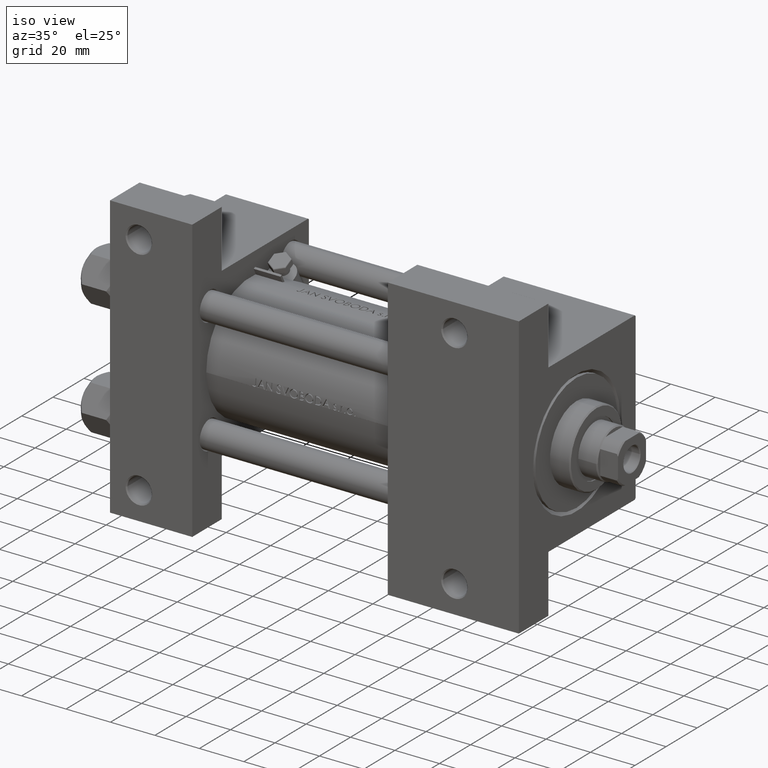
[diagram: clean part render]
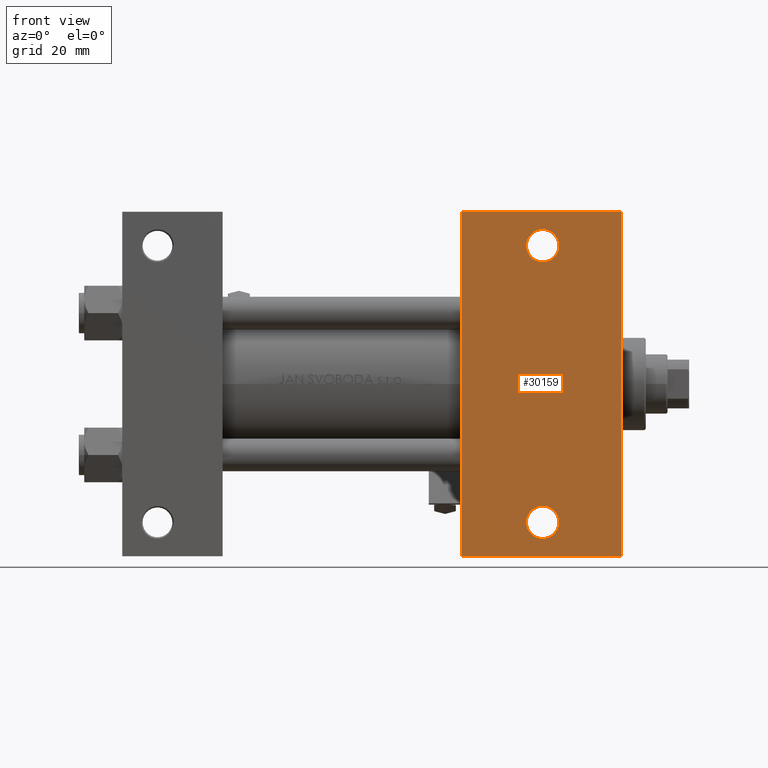
[diagram: tour spotlight — one face highlighted and labeled with its STEP entity id]
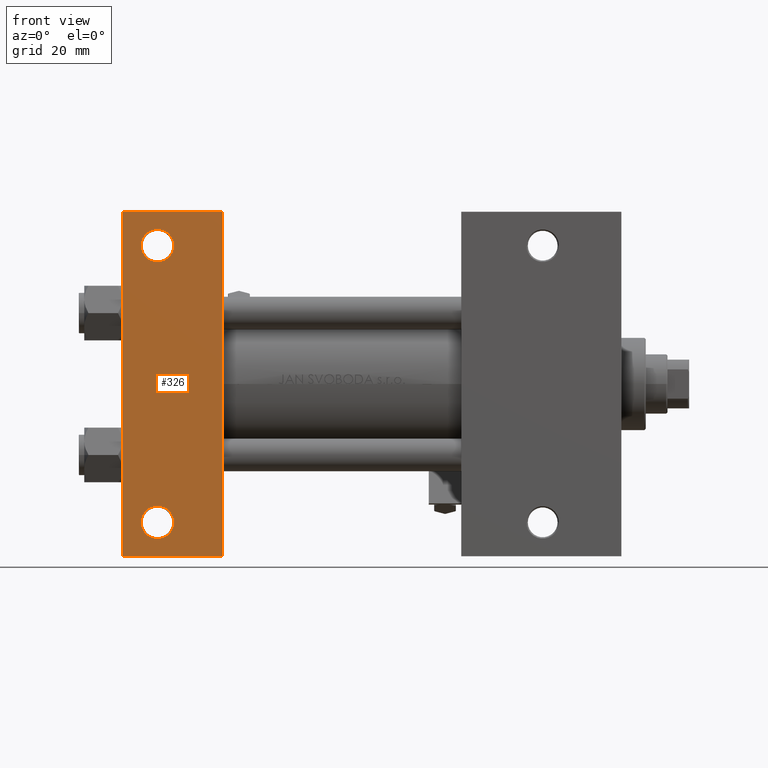
[diagram: tour spotlight — one face highlighted and labeled with its STEP entity id]
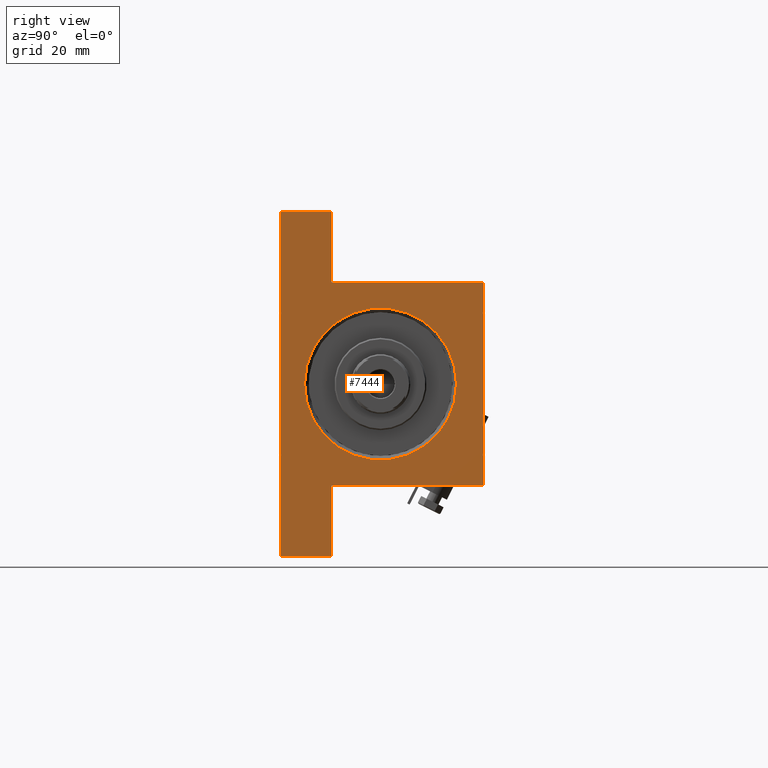
[diagram: tour spotlight — one face highlighted and labeled with its STEP entity id]
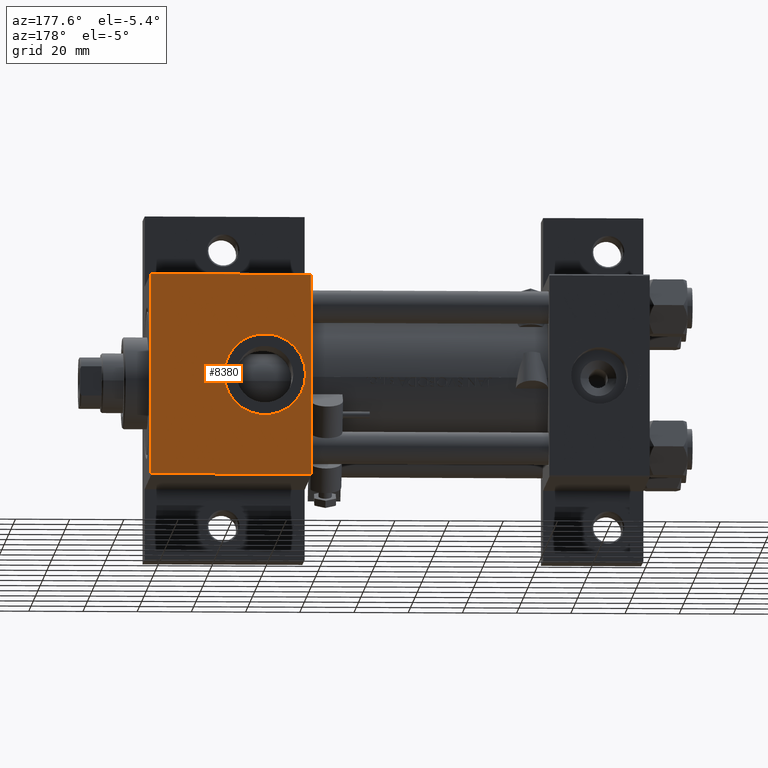
[diagram: tour spotlight — one face highlighted and labeled with its STEP entity id]
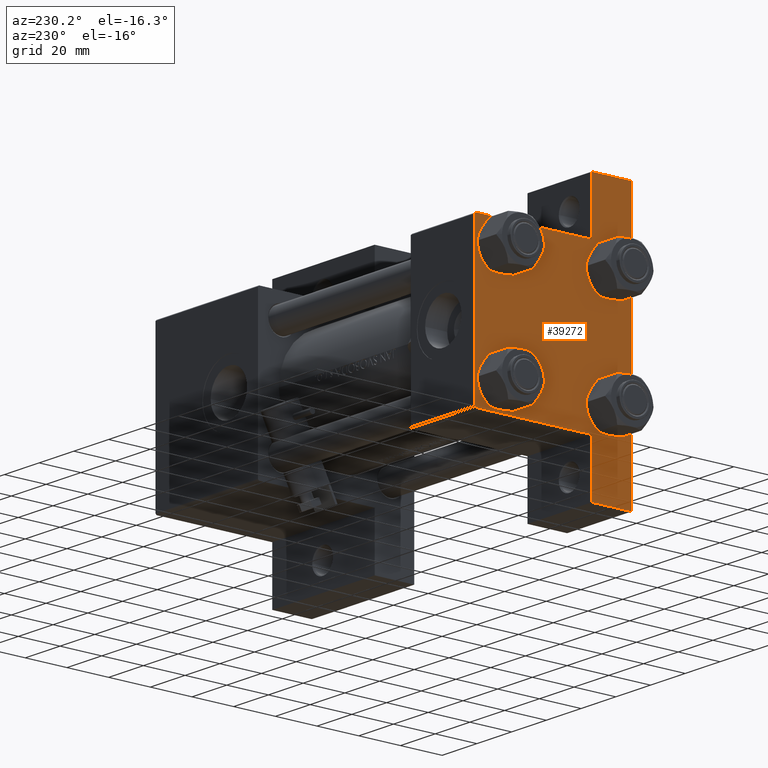
[diagram: tour spotlight — one face highlighted and labeled with its STEP entity id]
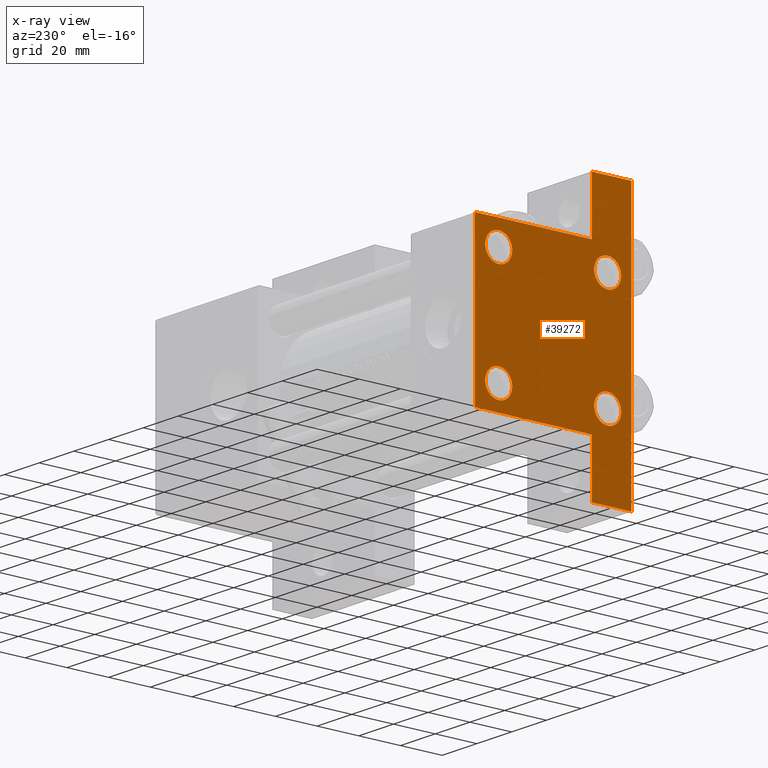
[diagram: x-ray of the same camera — body ghosted, this tour face saturated]
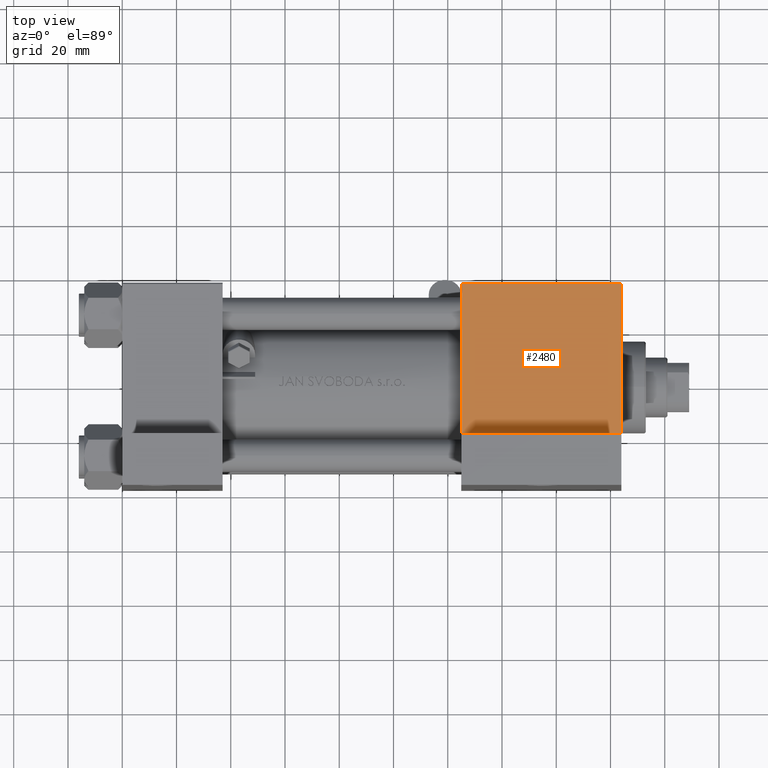
[diagram: tour spotlight — one face highlighted and labeled with its STEP entity id]
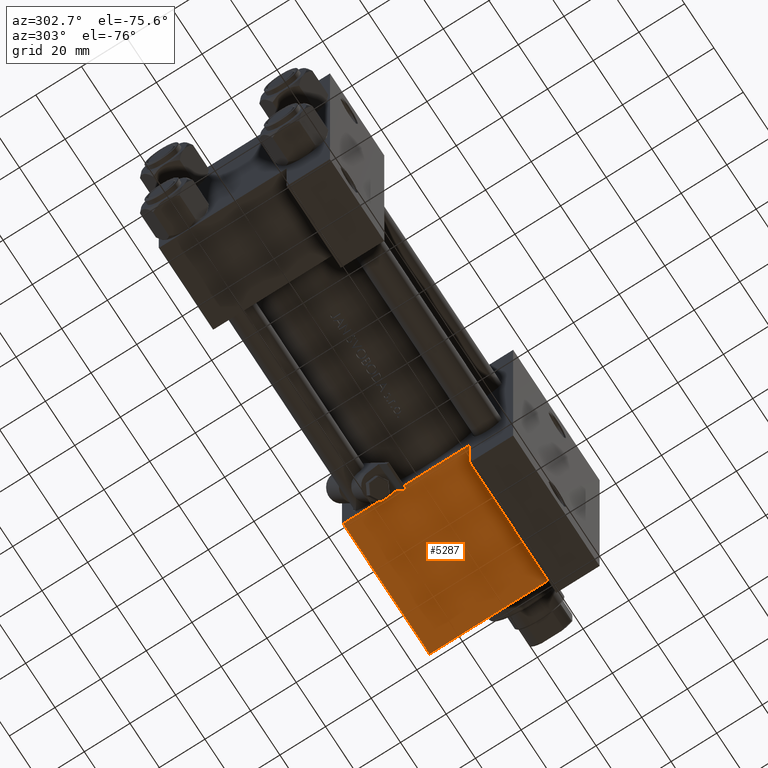
[diagram: tour spotlight — one face highlighted and labeled with its STEP entity id]
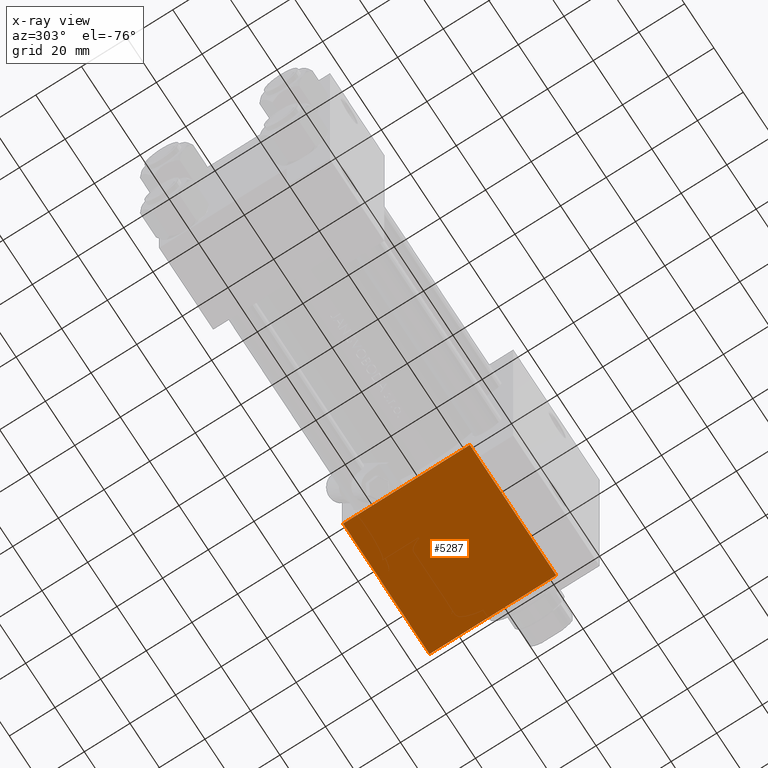
[diagram: x-ray of the same camera — body ghosted, this tour face saturated]
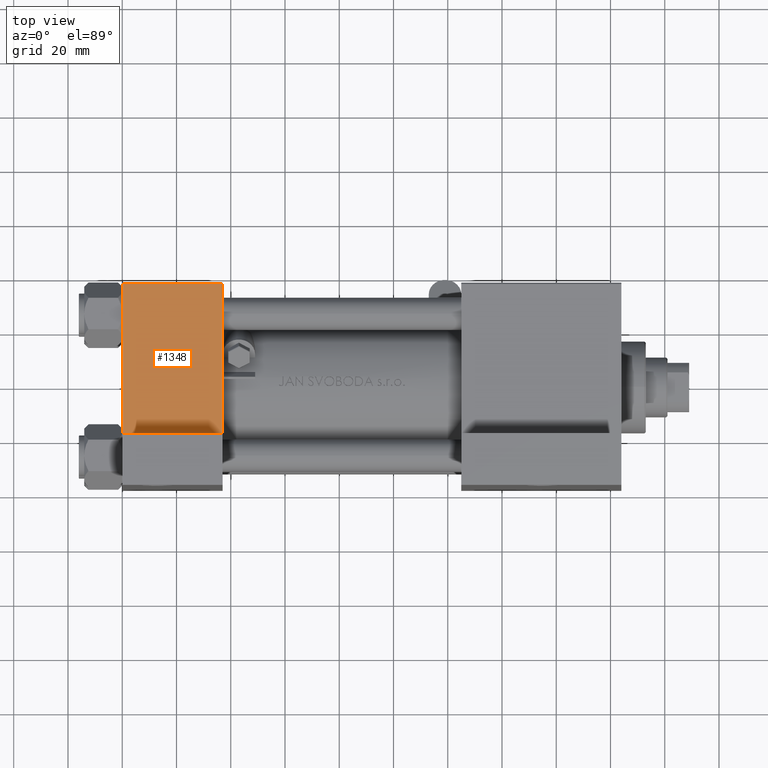
[diagram: tour spotlight — one face highlighted and labeled with its STEP entity id]
A machine part: a face-by-face anatomy tour. The part has 1152 B-rep faces; the first image is the clean iso view, then the 8 largest visible faces are spotlighted one at a time (largest first), each with its STEP entity span.

Face 1 — front view, entity #30159. In plain terms, the highlighted planar face has unit normal (0, -1, 0).
Definition (entity closure, byte-faithful):
#37 = PLANE ( 'NONE',  #19064 ) ;
#1067 = VERTEX_POINT ( 'NONE', #8407 ) ;
#1082 = AXIS2_PLACEMENT_3D ( 'NONE', #48311, #44402, #33092 ) ;
#1099 = ORIENTED_EDGE ( 'NONE', *, *, #39610, .T. ) ;
#1125 = EDGE_LOOP ( 'NONE', ( #3092, #1099 ) ) ;
#1801 = LINE ( 'NONE', #43612, #36463 ) ;
#3092 = ORIENTED_EDGE ( 'NONE', *, *, #25822, .T. ) ;
#3544 = ORIENTED_EDGE ( 'NONE', *, *, #36781, .T. ) ;
#5256 = DIRECTION ( 'NONE',  ( -1.000000000000000000, 0.000000000000000000, 0.000000000000000000 ) ) ;
#5664 = CIRCLE ( 'NONE', #14342, 5.999499999999990507 ) ;
#6230 = CARTESIAN_POINT ( 'NONE',  ( 124.9999999999999858, -63.50000000000000000, -37.50000000000000000 ) ) ;
#6241 = CARTESIAN_POINT ( 'NONE',  ( 149.0005000000000450, -50.99999999999999289, -37.50000000000000000 ) ) ;
#7638 = CARTESIAN_POINT ( 'NONE',  ( 184.0000000000000000, 37.50000000000000000, -37.50000000000000000 ) ) ;
#7867 = FACE_BOUND ( 'NONE', #1125, .T. ) ;
#8407 = CARTESIAN_POINT ( 'NONE',  ( 160.9995000000000118, -50.99999999999999289, -37.50000000000000000 ) ) ;
#8564 = CARTESIAN_POINT ( 'NONE',  ( 155.0000000000000284, 50.99999999999999289, -37.50000000000000000 ) ) ;
#12038 = FACE_BOUND ( 'NONE', #21282, .T. ) ;
#12643 = CIRCLE ( 'NONE', #40156, 5.999499999999990507 ) ;
#12772 = LINE ( 'NONE', #43290, #39512 ) ;
#12807 = EDGE_CURVE ( 'NONE', #43226, #1067, #16752, .T. ) ;
#13576 = DIRECTION ( 'NONE',  ( 0.000000000000000000, -1.000000000000000000, 0.000000000000000000 ) ) ;
#14342 = AXIS2_PLACEMENT_3D ( 'NONE', #22570, #30436, #18867 ) ;
#14648 = LINE ( 'NONE', #37290, #40687 ) ;
#15004 = VERTEX_POINT ( 'NONE', #21352 ) ;
#15187 = CARTESIAN_POINT ( 'NONE',  ( 125.0000000000000000, 63.50000000000000000, -37.50000000000000000 ) ) ;
#16752 = CIRCLE ( 'NONE', #1082, 5.999499999999990507 ) ;
#17794 = ORIENTED_EDGE ( 'NONE', *, *, #12807, .T. ) ;
#18867 = DIRECTION ( 'NONE',  ( -1.000000000000000000, 0.000000000000000000, 0.000000000000000000 ) ) ;
#19064 = AXIS2_PLACEMENT_3D ( 'NONE', #7638, #38615, #45507 ) ;
#20293 = ORIENTED_EDGE ( 'NONE', *, *, #23086, .T. ) ;
#20347 = VERTEX_POINT ( 'NONE', #28968 ) ;
#21282 = EDGE_LOOP ( 'NONE', ( #17794, #28941 ) ) ;
#21352 = CARTESIAN_POINT ( 'NONE',  ( 184.0000000000000284, 63.50000000000000000, -37.50000000000000000 ) ) ;
#21912 = VERTEX_POINT ( 'NONE', #33304 ) ;
#22279 = DIRECTION ( 'NONE',  ( 0.000000000000000000, -1.000000000000000000, 0.000000000000000000 ) ) ;
#22570 = CARTESIAN_POINT ( 'NONE',  ( 155.0000000000000284, -50.99999999999999289, -37.50000000000000000 ) ) ;
#23086 = EDGE_CURVE ( 'NONE', #21912, #46676, #32944, .T. ) ;
#23510 = VERTEX_POINT ( 'NONE', #37005 ) ;
#23822 = DIRECTION ( 'NONE',  ( -0.000000000000000000, -0.000000000000000000, 1.000000000000000000 ) ) ;
#23952 = DIRECTION ( 'NONE',  ( -0.000000000000000000, -0.000000000000000000, 1.000000000000000000 ) ) ;
#25074 = CARTESIAN_POINT ( 'NONE',  ( 124.9999999999999858, -63.50000000000000000, -37.50000000000000000 ) ) ;
#25822 = EDGE_CURVE ( 'NONE', #23510, #20347, #12643, .T. ) ;
#28941 = ORIENTED_EDGE ( 'NONE', *, *, #29601, .T. ) ;
#28968 = CARTESIAN_POINT ( 'NONE',  ( 160.9995000000000118, 50.99999999999999289, -37.50000000000000000 ) ) ;
#29601 = EDGE_CURVE ( 'NONE', #1067, #43226, #5664, .T. ) ;
#30159 = ADVANCED_FACE ( 'NONE', ( #7867, #12038, #41352 ), #37, .T. ) ;
#30436 = DIRECTION ( 'NONE',  ( -0.000000000000000000, -0.000000000000000000, 1.000000000000000000 ) ) ;
#31085 = CARTESIAN_POINT ( 'NONE',  ( 155.0000000000000284, 50.99999999999999289, -37.50000000000000000 ) ) ;
#31212 = EDGE_CURVE ( 'NONE', #43045, #15004, #12772, .T. ) ;
#32944 = LINE ( 'NONE', #25074, #39271 ) ;
#33092 = DIRECTION ( 'NONE',  ( -1.000000000000000000, 0.000000000000000000, 0.000000000000000000 ) ) ;
#33189 = DIRECTION ( 'NONE',  ( -1.000000000000000000, 4.704334850106594808E-16, -0.000000000000000000 ) ) ;
#33304 = CARTESIAN_POINT ( 'NONE',  ( 184.0000000000000000, -63.50000000000002842, -37.50000000000000000 ) ) ;
#33406 = CIRCLE ( 'NONE', #38921, 5.999499999999990507 ) ;
#33706 = EDGE_LOOP ( 'NONE', ( #43598, #38136, #3544, #20293 ) ) ;
#36463 = VECTOR ( 'NONE', #13576, 1000.000000000000000 ) ;
#36781 = EDGE_CURVE ( 'NONE', #15004, #21912, #1801, .T. ) ;
#37005 = CARTESIAN_POINT ( 'NONE',  ( 149.0005000000000450, 50.99999999999999289, -37.50000000000000000 ) ) ;
#37290 = CARTESIAN_POINT ( 'NONE',  ( 125.0000000000000000, 37.50000000000000000, -37.50000000000000000 ) ) ;
#38136 = ORIENTED_EDGE ( 'NONE', *, *, #31212, .T. ) ;
#38585 = DIRECTION ( 'NONE',  ( -1.000000000000000000, 0.000000000000000000, 0.000000000000000000 ) ) ;
#38615 = DIRECTION ( 'NONE',  ( 0.000000000000000000, 0.000000000000000000, -1.000000000000000000 ) ) ;
#38921 = AXIS2_PLACEMENT_3D ( 'NONE', #8564, #23822, #38585 ) ;
#39271 = VECTOR ( 'NONE', #33189, 1000.000000000000000 ) ;
#39512 = VECTOR ( 'NONE', #46963, 1000.000000000000000 ) ;
#39610 = EDGE_CURVE ( 'NONE', #20347, #23510, #33406, .T. ) ;
#40156 = AXIS2_PLACEMENT_3D ( 'NONE', #31085, #23952, #5256 ) ;
#40687 = VECTOR ( 'NONE', #22279, 1000.000000000000000 ) ;
#41352 = FACE_OUTER_BOUND ( 'NONE', #33706, .T. ) ;
#43045 = VERTEX_POINT ( 'NONE', #15187 ) ;
#43226 = VERTEX_POINT ( 'NONE', #6241 ) ;
#43290 = CARTESIAN_POINT ( 'NONE',  ( 125.0000000000000000, 63.50000000000000000, -37.50000000000000000 ) ) ;
#43598 = ORIENTED_EDGE ( 'NONE', *, *, #45096, .F. ) ;
#43612 = CARTESIAN_POINT ( 'NONE',  ( 184.0000000000000000, 37.50000000000000000, -37.50000000000000000 ) ) ;
#44402 = DIRECTION ( 'NONE',  ( -0.000000000000000000, -0.000000000000000000, 1.000000000000000000 ) ) ;
#45096 = EDGE_CURVE ( 'NONE', #43045, #46676, #14648, .T. ) ;
#45507 = DIRECTION ( 'NONE',  ( -1.000000000000000000, 0.000000000000000000, -0.000000000000000000 ) ) ;
#46676 = VERTEX_POINT ( 'NONE', #6230 ) ;
#46963 = DIRECTION ( 'NONE',  ( 1.000000000000000000, 0.000000000000000000, 0.000000000000000000 ) ) ;
#48311 = CARTESIAN_POINT ( 'NONE',  ( 155.0000000000000284, -50.99999999999999289, -37.50000000000000000 ) ) ;

Face 2 — front view, entity #326. In plain terms, the highlighted planar face has unit normal (0, -1, -0).
Definition (entity closure, byte-faithful):
#326 = ADVANCED_FACE ( 'NONE', ( #34976, #41865, #15778 ), #38415, .T. ) ;
#627 = EDGE_CURVE ( 'NONE', #39234, #14632, #15895, .T. ) ;
#1259 = CIRCLE ( 'NONE', #5175, 5.999499999999962974 ) ;
#2179 = DIRECTION ( 'NONE',  ( -0.000000000000000000, -9.251858538542972814E-17, 1.000000000000000000 ) ) ;
#2449 = DIRECTION ( 'NONE',  ( 0.000000000000000000, 1.000000000000000000, 0.000000000000000000 ) ) ;
#2968 = EDGE_CURVE ( 'NONE', #36871, #10669, #10301, .T. ) ;
#3477 = EDGE_LOOP ( 'NONE', ( #37053, #20742, #26436, #33170 ) ) ;
#4027 = AXIS2_PLACEMENT_3D ( 'NONE', #44078, #9628, #6191 ) ;
#4556 = EDGE_LOOP ( 'NONE', ( #47822, #24177 ) ) ;
#5175 = AXIS2_PLACEMENT_3D ( 'NONE', #47650, #2179, #17159 ) ;
#6191 = DIRECTION ( 'NONE',  ( 0.000000000000000000, 1.000000000000000000, 0.000000000000000000 ) ) ;
#7361 = CARTESIAN_POINT ( 'NONE',  ( 12.99999999999999822, 50.99999999999997868, -37.50000000000000000 ) ) ;
#8398 = DIRECTION ( 'NONE',  ( 0.000000000000000000, 1.000000000000000000, 9.251858538542972814E-17 ) ) ;
#8635 = DIRECTION ( 'NONE',  ( 0.000000000000000000, 9.251858538542972814E-17, -1.000000000000000000 ) ) ;
#9628 = DIRECTION ( 'NONE',  ( -0.000000000000000000, -9.251858538542972814E-17, 1.000000000000000000 ) ) ;
#10301 = CIRCLE ( 'NONE', #4027, 5.999499999999962974 ) ;
#10669 = VERTEX_POINT ( 'NONE', #13204 ) ;
#11798 = CARTESIAN_POINT ( 'NONE',  ( 37.00000000000000000, -63.50000000000000000, -37.49999999999999289 ) ) ;
#13204 = CARTESIAN_POINT ( 'NONE',  ( 7.000500000000034362, -51.00000000000000711, -37.50000000000000711 ) ) ;
#14159 = AXIS2_PLACEMENT_3D ( 'NONE', #40577, #35672, #2449 ) ;
#14632 = VERTEX_POINT ( 'NONE', #11798 ) ;
#14769 = VERTEX_POINT ( 'NONE', #38613 ) ;
#14958 = LINE ( 'NONE', #30456, #26944 ) ;
#15125 = ORIENTED_EDGE ( 'NONE', *, *, #40566, .T. ) ;
#15778 = FACE_OUTER_BOUND ( 'NONE', #3477, .T. ) ;
#15895 = LINE ( 'NONE', #31638, #18828 ) ;
#17159 = DIRECTION ( 'NONE',  ( 0.000000000000000000, 1.000000000000000000, 0.000000000000000000 ) ) ;
#17782 = AXIS2_PLACEMENT_3D ( 'NONE', #7361, #17940, #32960 ) ;
#17940 = DIRECTION ( 'NONE',  ( -0.000000000000000000, -9.251858538542972814E-17, 1.000000000000000000 ) ) ;
#18625 = CARTESIAN_POINT ( 'NONE',  ( 3.977209754999747208E-16, -63.50000000000000000, -37.49999999999999289 ) ) ;
#18828 = VECTOR ( 'NONE', #20555, 1000.000000000000000 ) ;
#19130 = EDGE_CURVE ( 'NONE', #39019, #14769, #42934, .T. ) ;
#19473 = EDGE_LOOP ( 'NONE', ( #15125, #40132 ) ) ;
#20555 = DIRECTION ( 'NONE',  ( 0.000000000000000000, -1.000000000000000000, -9.251858538542972814E-17 ) ) ;
#20742 = ORIENTED_EDGE ( 'NONE', *, *, #27599, .T. ) ;
#20964 = CARTESIAN_POINT ( 'NONE',  ( 7.000500000000034362, 50.99999999999997868, -37.50000000000000000 ) ) ;
#21170 = AXIS2_PLACEMENT_3D ( 'NONE', #31037, #8635, #8398 ) ;
#21759 = EDGE_CURVE ( 'NONE', #37709, #40748, #24705, .T. ) ;
#21776 = LINE ( 'NONE', #37751, #24493 ) ;
#24177 = ORIENTED_EDGE ( 'NONE', *, *, #24422, .T. ) ;
#24422 = EDGE_CURVE ( 'NONE', #14769, #39019, #37741, .T. ) ;
#24493 = VECTOR ( 'NONE', #37265, 1000.000000000000000 ) ;
#24705 = LINE ( 'NONE', #39705, #30568 ) ;
#26436 = ORIENTED_EDGE ( 'NONE', *, *, #627, .T. ) ;
#26944 = VECTOR ( 'NONE', #45221, 1000.000000000000000 ) ;
#27599 = EDGE_CURVE ( 'NONE', #37709, #39234, #21776, .T. ) ;
#28124 = CARTESIAN_POINT ( 'NONE',  ( 1.595073532467135441E-14, 63.50000000000000000, -37.50000000000002132 ) ) ;
#29079 = CARTESIAN_POINT ( 'NONE',  ( 18.99949999999996209, -51.00000000000000711, -37.50000000000000711 ) ) ;
#30053 = CARTESIAN_POINT ( 'NONE',  ( 37.00000000000001421, 63.50000000000000000, -37.50000000000002132 ) ) ;
#30456 = CARTESIAN_POINT ( 'NONE',  ( 3.977209754999747208E-16, -63.50000000000000000, -37.49999999999999289 ) ) ;
#30568 = VECTOR ( 'NONE', #46112, 1000.000000000000000 ) ;
#31037 = CARTESIAN_POINT ( 'NONE',  ( 37.00000000000000000, 37.49999999999999289, -37.50000000000000000 ) ) ;
#31366 = EDGE_CURVE ( 'NONE', #14632, #40748, #14958, .T. ) ;
#31638 = CARTESIAN_POINT ( 'NONE',  ( 37.00000000000000000, 37.49999999999999289, -37.50000000000000000 ) ) ;
#32960 = DIRECTION ( 'NONE',  ( 0.000000000000000000, 1.000000000000000000, 0.000000000000000000 ) ) ;
#33170 = ORIENTED_EDGE ( 'NONE', *, *, #31366, .T. ) ;
#34976 = FACE_BOUND ( 'NONE', #4556, .T. ) ;
#35672 = DIRECTION ( 'NONE',  ( -0.000000000000000000, -9.251858538542972814E-17, 1.000000000000000000 ) ) ;
#36871 = VERTEX_POINT ( 'NONE', #29079 ) ;
#37053 = ORIENTED_EDGE ( 'NONE', *, *, #21759, .F. ) ;
#37265 = DIRECTION ( 'NONE',  ( 1.000000000000000000, 0.000000000000000000, 0.000000000000000000 ) ) ;
#37709 = VERTEX_POINT ( 'NONE', #28124 ) ;
#37741 = CIRCLE ( 'NONE', #14159, 5.999499999999962974 ) ;
#37751 = CARTESIAN_POINT ( 'NONE',  ( 1.595073532467135441E-14, 63.50000000000000000, -37.50000000000002132 ) ) ;
#38415 = PLANE ( 'NONE',  #21170 ) ;
#38613 = CARTESIAN_POINT ( 'NONE',  ( 18.99949999999996209, 50.99999999999997868, -37.50000000000000000 ) ) ;
#39019 = VERTEX_POINT ( 'NONE', #20964 ) ;
#39234 = VERTEX_POINT ( 'NONE', #30053 ) ;
#39705 = CARTESIAN_POINT ( 'NONE',  ( 0.000000000000000000, 37.49999999999999289, -37.50000000000000000 ) ) ;
#40132 = ORIENTED_EDGE ( 'NONE', *, *, #2968, .T. ) ;
#40566 = EDGE_CURVE ( 'NONE', #10669, #36871, #1259, .T. ) ;
#40577 = CARTESIAN_POINT ( 'NONE',  ( 12.99999999999999822, 50.99999999999997868, -37.50000000000000000 ) ) ;
#40748 = VERTEX_POINT ( 'NONE', #18625 ) ;
#41865 = FACE_BOUND ( 'NONE', #19473, .T. ) ;
#42934 = CIRCLE ( 'NONE', #17782, 5.999499999999962974 ) ;
#44078 = CARTESIAN_POINT ( 'NONE',  ( 12.99999999999999822, -51.00000000000000711, -37.50000000000000711 ) ) ;
#45221 = DIRECTION ( 'NONE',  ( -1.000000000000000000, -0.000000000000000000, -0.000000000000000000 ) ) ;
#46112 = DIRECTION ( 'NONE',  ( 0.000000000000000000, -1.000000000000000000, -9.251858538542972814E-17 ) ) ;
#47650 = CARTESIAN_POINT ( 'NONE',  ( 12.99999999999999822, -51.00000000000000711, -37.50000000000000711 ) ) ;
#47822 = ORIENTED_EDGE ( 'NONE', *, *, #19130, .T. ) ;

Face 3 — right view, entity #7444. In plain terms, the highlighted planar face has unit normal (-1, 0, 0).
Definition (entity closure, byte-faithful):
#1011 = VERTEX_POINT ( 'NONE', #17294 ) ;
#1199 = EDGE_CURVE ( 'NONE', #6686, #21912, #39392, .T. ) ;
#1422 = VERTEX_POINT ( 'NONE', #38602 ) ;
#1801 = LINE ( 'NONE', #43612, #36463 ) ;
#1946 = EDGE_CURVE ( 'NONE', #38827, #18094, #30325, .T. ) ;
#2067 = VERTEX_POINT ( 'NONE', #45330 ) ;
#2135 = VERTEX_POINT ( 'NONE', #42913 ) ;
#2210 = EDGE_CURVE ( 'NONE', #19672, #38827, #13302, .T. ) ;
#2329 = EDGE_CURVE ( 'NONE', #5217, #2135, #37007, .T. ) ;
#2440 = VECTOR ( 'NONE', #5927, 1000.000000000000114 ) ;
#4094 = CARTESIAN_POINT ( 'NONE',  ( 184.0000000000000000, -37.50000000000000000, 37.49999999999997868 ) ) ;
#4763 = LINE ( 'NONE', #45845, #28246 ) ;
#5130 = ORIENTED_EDGE ( 'NONE', *, *, #18445, .T. ) ;
#5154 = CARTESIAN_POINT ( 'NONE',  ( 184.0000000000000000, -63.50000000000002842, -18.50000000000000000 ) ) ;
#5217 = VERTEX_POINT ( 'NONE', #30900 ) ;
#5390 = DIRECTION ( 'NONE',  ( 0.000000000000000000, 0.000000000000000000, 1.000000000000000000 ) ) ;
#5927 = DIRECTION ( 'NONE',  ( 0.000000000000000000, -0.7071067811865474617, 0.7071067811865474617 ) ) ;
#6213 = CARTESIAN_POINT ( 'NONE',  ( 184.0000000000000000, -37.50000000000000000, 36.99999999999995026 ) ) ;
#6491 = LINE ( 'NONE', #21493, #23389 ) ;
#6686 = VERTEX_POINT ( 'NONE', #5154 ) ;
#7444 = ADVANCED_FACE ( 'NONE', ( #23602, #34432 ), #9079, .F. ) ;
#8044 = ORIENTED_EDGE ( 'NONE', *, *, #27209, .F. ) ;
#8511 = DIRECTION ( 'NONE',  ( 0.000000000000000000, -9.251858538542972814E-17, -1.000000000000000000 ) ) ;
#8994 = EDGE_CURVE ( 'NONE', #2067, #1011, #30655, .T. ) ;
#9079 = PLANE ( 'NONE',  #41842 ) ;
#9602 = DIRECTION ( 'NONE',  ( 0.000000000000000000, 0.000000000000000000, -1.000000000000000000 ) ) ;
#9686 = ORIENTED_EDGE ( 'NONE', *, *, #2329, .T. ) ;
#9871 = AXIS2_PLACEMENT_3D ( 'NONE', #23283, #38295, #19580 ) ;
#11324 = DIRECTION ( 'NONE',  ( 0.000000000000000000, 0.000000000000000000, 1.000000000000000000 ) ) ;
#12759 = DIRECTION ( 'NONE',  ( -1.000000000000000000, -0.000000000000000000, 0.000000000000000000 ) ) ;
#13302 = LINE ( 'NONE', #32987, #2440 ) ;
#13576 = DIRECTION ( 'NONE',  ( 0.000000000000000000, -1.000000000000000000, 0.000000000000000000 ) ) ;
#13773 = CARTESIAN_POINT ( 'NONE',  ( 184.0000000000000000, 37.50000000000000000, 37.49999999999999289 ) ) ;
#14177 = ORIENTED_EDGE ( 'NONE', *, *, #8994, .T. ) ;
#14281 = EDGE_LOOP ( 'NONE', ( #9686, #5130 ) ) ;
#15004 = VERTEX_POINT ( 'NONE', #21352 ) ;
#15319 = CARTESIAN_POINT ( 'NONE',  ( 184.0000000000000000, 37.50000000000000000, 37.49999999999999289 ) ) ;
#17294 = CARTESIAN_POINT ( 'NONE',  ( 184.0000000000000000, -37.50000000000000711, -18.50000000000000355 ) ) ;
#17702 = DIRECTION ( 'NONE',  ( 0.000000000000000000, 0.000000000000000000, -1.000000000000000000 ) ) ;
#18069 = EDGE_CURVE ( 'NONE', #1422, #15004, #18183, .T. ) ;
#18094 = VERTEX_POINT ( 'NONE', #36650 ) ;
#18183 = LINE ( 'NONE', #21383, #27927 ) ;
#18209 = DIRECTION ( 'NONE',  ( -1.000000000000000000, -0.000000000000000000, 0.000000000000000000 ) ) ;
#18445 = EDGE_CURVE ( 'NONE', #2135, #5217, #31093, .T. ) ;
#18636 = ORIENTED_EDGE ( 'NONE', *, *, #2210, .T. ) ;
#19417 = CARTESIAN_POINT ( 'NONE',  ( 184.0000000000000000, 0.000000000000000000, 0.000000000000000000 ) ) ;
#19580 = DIRECTION ( 'NONE',  ( 0.000000000000000000, 0.000000000000000000, 1.000000000000000000 ) ) ;
#19672 = VERTEX_POINT ( 'NONE', #20258 ) ;
#20258 = CARTESIAN_POINT ( 'NONE',  ( 184.0000000000000000, 37.50000000000000000, 36.99999999999999289 ) ) ;
#21214 = VECTOR ( 'NONE', #9602, 1000.000000000000000 ) ;
#21352 = CARTESIAN_POINT ( 'NONE',  ( 184.0000000000000284, 63.50000000000000000, -37.50000000000000000 ) ) ;
#21383 = CARTESIAN_POINT ( 'NONE',  ( 184.0000000000000284, 63.50000000000000000, -18.50000000000000000 ) ) ;
#21493 = CARTESIAN_POINT ( 'NONE',  ( 184.0000000000000000, -63.50000000000002842, -18.50000000000000000 ) ) ;
#21912 = VERTEX_POINT ( 'NONE', #33304 ) ;
#23128 = ORIENTED_EDGE ( 'NONE', *, *, #45520, .T. ) ;
#23283 = CARTESIAN_POINT ( 'NONE',  ( 184.0000000000000000, 0.000000000000000000, -0.5000000000000004441 ) ) ;
#23389 = VECTOR ( 'NONE', #23430, 1000.000000000000000 ) ;
#23430 = DIRECTION ( 'NONE',  ( -0.000000000000000000, -1.000000000000000000, -0.000000000000000000 ) ) ;
#23602 = FACE_BOUND ( 'NONE', #14281, .T. ) ;
#25110 = CARTESIAN_POINT ( 'NONE',  ( 184.0000000000000000, -63.50000000000002842, -18.50000000000000000 ) ) ;
#25709 = CARTESIAN_POINT ( 'NONE',  ( 184.0000000000000000, 37.00000000000000000, 37.49999999999999289 ) ) ;
#25771 = ORIENTED_EDGE ( 'NONE', *, *, #1199, .T. ) ;
#25915 = EDGE_CURVE ( 'NONE', #18094, #2067, #39919, .T. ) ;
#26405 = DIRECTION ( 'NONE',  ( 0.000000000000000000, -1.000000000000000000, -1.850371707708594316E-16 ) ) ;
#27209 = EDGE_CURVE ( 'NONE', #19672, #41728, #47703, .T. ) ;
#27515 = VECTOR ( 'NONE', #26405, 1000.000000000000000 ) ;
#27927 = VECTOR ( 'NONE', #17702, 1000.000000000000000 ) ;
#28246 = VECTOR ( 'NONE', #35757, 1000.000000000000000 ) ;
#30325 = LINE ( 'NONE', #15319, #27515 ) ;
#30655 = LINE ( 'NONE', #4094, #47396 ) ;
#30900 = CARTESIAN_POINT ( 'NONE',  ( 184.0000000000000000, 0.000000000000000000, -28.49999999999999645 ) ) ;
#31093 = CIRCLE ( 'NONE', #9871, 27.99999999999999645 ) ;
#32987 = CARTESIAN_POINT ( 'NONE',  ( 184.0000000000000000, 37.00000000000000000, 37.49999999999999289 ) ) ;
#33304 = CARTESIAN_POINT ( 'NONE',  ( 184.0000000000000000, -63.50000000000002842, -37.50000000000000000 ) ) ;
#33550 = ORIENTED_EDGE ( 'NONE', *, *, #25915, .T. ) ;
#34432 = FACE_OUTER_BOUND ( 'NONE', #37992, .T. ) ;
#34981 = CARTESIAN_POINT ( 'NONE',  ( 184.0000000000000000, 37.49999999999999289, -18.50000000000000000 ) ) ;
#35592 = ORIENTED_EDGE ( 'NONE', *, *, #47804, .T. ) ;
#35757 = DIRECTION ( 'NONE',  ( -1.067522139062650277E-15, -1.000000000000000000, 0.000000000000000000 ) ) ;
#36463 = VECTOR ( 'NONE', #13576, 1000.000000000000000 ) ;
#36650 = CARTESIAN_POINT ( 'NONE',  ( 184.0000000000000000, -36.99999999999997158, 37.49999999999997868 ) ) ;
#36781 = EDGE_CURVE ( 'NONE', #15004, #21912, #1801, .T. ) ;
#37007 = CIRCLE ( 'NONE', #47190, 27.99999999999999645 ) ;
#37646 = CARTESIAN_POINT ( 'NONE',  ( 184.0000000000000000, 0.000000000000000000, -0.5000000000000004441 ) ) ;
#37992 = EDGE_LOOP ( 'NONE', ( #8044, #18636, #45187, #33550, #14177, #23128, #25771, #42811, #38770, #35592 ) ) ;
#38295 = DIRECTION ( 'NONE',  ( -1.000000000000000000, -0.000000000000000000, 0.000000000000000000 ) ) ;
#38602 = CARTESIAN_POINT ( 'NONE',  ( 184.0000000000000284, 63.50000000000000000, -18.50000000000000000 ) ) ;
#38770 = ORIENTED_EDGE ( 'NONE', *, *, #18069, .F. ) ;
#38827 = VERTEX_POINT ( 'NONE', #25709 ) ;
#39392 = LINE ( 'NONE', #25110, #21214 ) ;
#39919 = LINE ( 'NONE', #6213, #47961 ) ;
#40163 = DIRECTION ( 'NONE',  ( -0.000000000000000000, -0.7071067811865474617, -0.7071067811865474617 ) ) ;
#41728 = VERTEX_POINT ( 'NONE', #34981 ) ;
#41842 = AXIS2_PLACEMENT_3D ( 'NONE', #19417, #12759, #5390 ) ;
#42546 = VECTOR ( 'NONE', #47941, 1000.000000000000000 ) ;
#42811 = ORIENTED_EDGE ( 'NONE', *, *, #36781, .F. ) ;
#42913 = CARTESIAN_POINT ( 'NONE',  ( 184.0000000000000000, 3.429011037612588881E-15, 27.49999999999999645 ) ) ;
#43612 = CARTESIAN_POINT ( 'NONE',  ( 184.0000000000000000, 37.50000000000000000, -37.50000000000000000 ) ) ;
#45187 = ORIENTED_EDGE ( 'NONE', *, *, #1946, .T. ) ;
#45330 = CARTESIAN_POINT ( 'NONE',  ( 184.0000000000000000, -37.50000000000000000, 36.99999999999995026 ) ) ;
#45520 = EDGE_CURVE ( 'NONE', #1011, #6686, #6491, .T. ) ;
#45845 = CARTESIAN_POINT ( 'NONE',  ( 184.0000000000000284, 63.50000000000000000, -18.50000000000000000 ) ) ;
#47190 = AXIS2_PLACEMENT_3D ( 'NONE', #37646, #18209, #11324 ) ;
#47396 = VECTOR ( 'NONE', #8511, 1000.000000000000000 ) ;
#47703 = LINE ( 'NONE', #13773, #42546 ) ;
#47804 = EDGE_CURVE ( 'NONE', #1422, #41728, #4763, .T. ) ;
#47941 = DIRECTION ( 'NONE',  ( 0.000000000000000000, 0.000000000000000000, -1.000000000000000000 ) ) ;
#47961 = VECTOR ( 'NONE', #40163, 1000.000000000000114 ) ;

Face 4 — auxiliary view, entity #8380. In plain terms, the highlighted planar face has unit normal (0, -1, -0).
Definition (entity closure, byte-faithful):
#1946 = EDGE_CURVE ( 'NONE', #38827, #18094, #30325, .T. ) ;
#1953 = VECTOR ( 'NONE', #19752, 1000.000000000000000 ) ;
#3382 = CARTESIAN_POINT ( 'NONE',  ( 142.0000000000000284, -6.938893903907226011E-15, 37.49999999999998579 ) ) ;
#4755 = CARTESIAN_POINT ( 'NONE',  ( 125.0000000000000000, 37.50000000000000000, 37.49999999999999289 ) ) ;
#5805 = DIRECTION ( 'NONE',  ( 1.000000000000000000, 0.000000000000000000, 0.000000000000000000 ) ) ;
#6179 = ORIENTED_EDGE ( 'NONE', *, *, #6893, .F. ) ;
#6269 = DIRECTION ( 'NONE',  ( 1.000000000000000000, 0.000000000000000000, 0.000000000000000000 ) ) ;
#6509 = CARTESIAN_POINT ( 'NONE',  ( 184.0000000000000000, 37.50000000000000000, 37.49999999999999289 ) ) ;
#6893 = EDGE_CURVE ( 'NONE', #44480, #20408, #35564, .T. ) ;
#7574 = ORIENTED_EDGE ( 'NONE', *, *, #1946, .F. ) ;
#8380 = ADVANCED_FACE ( 'NONE', ( #29393, #17825 ), #36774, .F. ) ;
#9100 = AXIS2_PLACEMENT_3D ( 'NONE', #3382, #10269, #14686 ) ;
#9464 = LINE ( 'NONE', #39972, #22072 ) ;
#10269 = DIRECTION ( 'NONE',  ( 0.000000000000000000, 0.000000000000000000, 1.000000000000000000 ) ) ;
#12973 = LINE ( 'NONE', #35136, #19985 ) ;
#12992 = CIRCLE ( 'NONE', #9100, 15.00000000000001421 ) ;
#14686 = DIRECTION ( 'NONE',  ( 1.000000000000000000, 0.000000000000000000, 0.000000000000000000 ) ) ;
#15319 = CARTESIAN_POINT ( 'NONE',  ( 184.0000000000000000, 37.50000000000000000, 37.49999999999999289 ) ) ;
#15619 = EDGE_LOOP ( 'NONE', ( #7574, #33828, #15698, #34563 ) ) ;
#15698 = ORIENTED_EDGE ( 'NONE', *, *, #38929, .T. ) ;
#16124 = VERTEX_POINT ( 'NONE', #26531 ) ;
#16921 = CARTESIAN_POINT ( 'NONE',  ( 127.0000000000000000, -5.101923705186191689E-15, 37.49999999999998579 ) ) ;
#17825 = FACE_OUTER_BOUND ( 'NONE', #15619, .T. ) ;
#18094 = VERTEX_POINT ( 'NONE', #36650 ) ;
#18354 = EDGE_CURVE ( 'NONE', #20408, #44480, #12992, .T. ) ;
#19752 = DIRECTION ( 'NONE',  ( 0.000000000000000000, -1.000000000000000000, -1.850371707708594316E-16 ) ) ;
#19985 = VECTOR ( 'NONE', #24061, 1000.000000000000000 ) ;
#20408 = VERTEX_POINT ( 'NONE', #16921 ) ;
#21016 = DIRECTION ( 'NONE',  ( 0.000000000000000000, 1.000000000000000000, 1.850371707708594316E-16 ) ) ;
#22072 = VECTOR ( 'NONE', #6269, 1000.000000000000000 ) ;
#24028 = CARTESIAN_POINT ( 'NONE',  ( 142.0000000000000284, -6.938893903907226011E-15, 37.49999999999998579 ) ) ;
#24061 = DIRECTION ( 'NONE',  ( -1.000000000000000000, 0.000000000000000000, 0.000000000000000000 ) ) ;
#25667 = EDGE_CURVE ( 'NONE', #16124, #18094, #9464, .T. ) ;
#25709 = CARTESIAN_POINT ( 'NONE',  ( 184.0000000000000000, 37.00000000000000000, 37.49999999999999289 ) ) ;
#26356 = ORIENTED_EDGE ( 'NONE', *, *, #18354, .F. ) ;
#26405 = DIRECTION ( 'NONE',  ( 0.000000000000000000, -1.000000000000000000, -1.850371707708594316E-16 ) ) ;
#26531 = CARTESIAN_POINT ( 'NONE',  ( 125.0000000000000000, -36.99999999999997158, 37.49999999999997868 ) ) ;
#26571 = CARTESIAN_POINT ( 'NONE',  ( 125.0000000000000000, 37.00000000000000000, 37.49999999999999289 ) ) ;
#26947 = AXIS2_PLACEMENT_3D ( 'NONE', #6509, #44398, #21016 ) ;
#27515 = VECTOR ( 'NONE', #26405, 1000.000000000000000 ) ;
#29372 = VERTEX_POINT ( 'NONE', #26571 ) ;
#29393 = FACE_BOUND ( 'NONE', #35369, .T. ) ;
#30325 = LINE ( 'NONE', #15319, #27515 ) ;
#33828 = ORIENTED_EDGE ( 'NONE', *, *, #37493, .T. ) ;
#34315 = CARTESIAN_POINT ( 'NONE',  ( 157.0000000000000284, -6.938893903907226011E-15, 37.49999999999998579 ) ) ;
#34563 = ORIENTED_EDGE ( 'NONE', *, *, #25667, .T. ) ;
#35136 = CARTESIAN_POINT ( 'NONE',  ( 125.0000000000000000, 37.00000000000000000, 37.49999999999999289 ) ) ;
#35369 = EDGE_LOOP ( 'NONE', ( #6179, #26356 ) ) ;
#35564 = CIRCLE ( 'NONE', #44996, 15.00000000000001421 ) ;
#36650 = CARTESIAN_POINT ( 'NONE',  ( 184.0000000000000000, -36.99999999999997158, 37.49999999999997868 ) ) ;
#36774 = PLANE ( 'NONE',  #26947 ) ;
#37493 = EDGE_CURVE ( 'NONE', #38827, #29372, #12973, .T. ) ;
#38463 = LINE ( 'NONE', #4755, #1953 ) ;
#38827 = VERTEX_POINT ( 'NONE', #25709 ) ;
#38929 = EDGE_CURVE ( 'NONE', #29372, #16124, #38463, .T. ) ;
#39972 = CARTESIAN_POINT ( 'NONE',  ( 184.0000000000000000, -36.99999999999997158, 37.49999999999997868 ) ) ;
#42978 = DIRECTION ( 'NONE',  ( 0.000000000000000000, 0.000000000000000000, 1.000000000000000000 ) ) ;
#44398 = DIRECTION ( 'NONE',  ( 0.000000000000000000, 1.850371707708594316E-16, -1.000000000000000000 ) ) ;
#44480 = VERTEX_POINT ( 'NONE', #34315 ) ;
#44996 = AXIS2_PLACEMENT_3D ( 'NONE', #24028, #42978, #5805 ) ;

Face 5 — auxiliary view, entity #39272. An x-ray twin of the same camera follows (body ghosted, this face saturated) — the face is partly hidden behind the body. In plain terms, the highlighted planar face has unit normal (-1, 0, -0).
Definition (entity closure, byte-faithful):
#212 = VERTEX_POINT ( 'NONE', #22684 ) ;
#283 = CARTESIAN_POINT ( 'NONE',  ( 0.000000000000000000, -37.50000000000000711, 37.49999999999999289 ) ) ;
#299 = CARTESIAN_POINT ( 'NONE',  ( 1.595073532467135441E-14, 63.50000000000001421, 26.72167621838005047 ) ) ;
#728 = VECTOR ( 'NONE', #40290, 1000.000000000000114 ) ;
#779 = CARTESIAN_POINT ( 'NONE',  ( 0.000000000000000000, 0.000000000000000000, 0.000000000000000000 ) ) ;
#1668 = ORIENTED_EDGE ( 'NONE', *, *, #40982, .T. ) ;
#1977 = LINE ( 'NONE', #32946, #37772 ) ;
#2056 = VECTOR ( 'NONE', #2073, 1000.000000000000000 ) ;
#2073 = DIRECTION ( 'NONE',  ( 0.000000000000000000, 0.000000000000000000, -1.000000000000000000 ) ) ;
#2126 = CARTESIAN_POINT ( 'NONE',  ( 0.000000000000000000, -26.14999999999999147, -32.65000000000002700 ) ) ;
#2891 = CARTESIAN_POINT ( 'NONE',  ( -0.000000000000000000, -37.25000000000000000, 37.25000000000000000 ) ) ;
#2907 = ORIENTED_EDGE ( 'NONE', *, *, #21963, .T. ) ;
#3191 = CARTESIAN_POINT ( 'NONE',  ( 0.000000000000000000, 36.99999999999999289, 37.50000000000000000 ) ) ;
#3261 = CARTESIAN_POINT ( 'NONE',  ( 0.000000000000000000, -26.14999999999999147, 32.65000000000003411 ) ) ;
#3320 = CARTESIAN_POINT ( 'NONE',  ( 0.000000000000000000, 26.14999999999999858, -26.15000000000000213 ) ) ;
#3495 = CARTESIAN_POINT ( 'NONE',  ( 0.000000000000000000, -26.14999999999999147, 26.15000000000000924 ) ) ;
#3591 = VERTEX_POINT ( 'NONE', #22482 ) ;
#3973 = FACE_BOUND ( 'NONE', #48471, .T. ) ;
#4101 = EDGE_CURVE ( 'NONE', #212, #3591, #12240, .T. ) ;
#4381 = ORIENTED_EDGE ( 'NONE', *, *, #41263, .T. ) ;
#4551 = DIRECTION ( 'NONE',  ( 0.000000000000000000, -1.734723475976806848E-16, -1.000000000000000000 ) ) ;
#4730 = EDGE_LOOP ( 'NONE', ( #28221, #16591, #20150, #28806, #4381, #24055, #22504, #21876, #46393, #10604 ) ) ;
#5047 = CARTESIAN_POINT ( 'NONE',  ( 3.977209754999747208E-16, -63.50000000000000000, -18.50000000000000355 ) ) ;
#5319 = DIRECTION ( 'NONE',  ( 4.278042683914906889E-17, -1.000000000000000000, 0.000000000000000000 ) ) ;
#5523 = VERTEX_POINT ( 'NONE', #39870 ) ;
#6113 = EDGE_CURVE ( 'NONE', #20289, #25987, #41039, .T. ) ;
#6422 = CARTESIAN_POINT ( 'NONE',  ( 0.000000000000000000, 26.14999999999999858, 19.64999999999998437 ) ) ;
#6456 = CARTESIAN_POINT ( 'NONE',  ( 0.000000000000000000, 26.14999999999999858, -32.65000000000001990 ) ) ;
#6579 = CIRCLE ( 'NONE', #11287, 6.500000000000015987 ) ;
#6602 = AXIS2_PLACEMENT_3D ( 'NONE', #3495, #32533, #10638 ) ;
#8119 = DIRECTION ( 'NONE',  ( 0.000000000000000000, 9.251858538542971581E-17, -1.000000000000000000 ) ) ;
#8521 = CARTESIAN_POINT ( 'NONE',  ( 3.977209754999744250E-16, -63.49999999999998579, -18.50000000000000355 ) ) ;
#9151 = EDGE_CURVE ( 'NONE', #20025, #46947, #6579, .T. ) ;
#9723 = CARTESIAN_POINT ( 'NONE',  ( 0.000000000000000000, -26.14999999999999147, -26.15000000000000924 ) ) ;
#9925 = LINE ( 'NONE', #17295, #2056 ) ;
#10279 = LINE ( 'NONE', #25286, #728 ) ;
#10604 = ORIENTED_EDGE ( 'NONE', *, *, #28883, .F. ) ;
#10638 = DIRECTION ( 'NONE',  ( 0.000000000000000000, 0.000000000000000000, 1.000000000000000000 ) ) ;
#11080 = VERTEX_POINT ( 'NONE', #5047 ) ;
#11287 = AXIS2_PLACEMENT_3D ( 'NONE', #3320, #40958, #32353 ) ;
#12012 = CARTESIAN_POINT ( 'NONE',  ( 0.000000000000000000, -26.14999999999999147, 19.64999999999999147 ) ) ;
#12069 = DIRECTION ( 'NONE',  ( -0.000000000000000000, 0.000000000000000000, 1.000000000000000000 ) ) ;
#12240 = LINE ( 'NONE', #16177, #38647 ) ;
#13361 = DIRECTION ( 'NONE',  ( 0.000000000000000000, 0.000000000000000000, 1.000000000000000000 ) ) ;
#13434 = VERTEX_POINT ( 'NONE', #28379 ) ;
#13906 = DIRECTION ( 'NONE',  ( 0.000000000000000000, 0.000000000000000000, 1.000000000000000000 ) ) ;
#14598 = VERTEX_POINT ( 'NONE', #6422 ) ;
#15293 = FACE_OUTER_BOUND ( 'NONE', #4730, .T. ) ;
#15856 = CARTESIAN_POINT ( 'NONE',  ( 3.977209754999747208E-16, -63.49999999999998579, 26.72167621838007889 ) ) ;
#16109 = CARTESIAN_POINT ( 'NONE',  ( 0.000000000000000000, -26.14999999999999147, -26.15000000000000924 ) ) ;
#16177 = CARTESIAN_POINT ( 'NONE',  ( 1.595073532467135757E-14, 63.50000000000001421, -18.50000000000000355 ) ) ;
#16591 = ORIENTED_EDGE ( 'NONE', *, *, #37540, .T. ) ;
#16932 = CARTESIAN_POINT ( 'NONE',  ( -7.145701223179004046E-16, -37.50000000000000711, -18.50000000000000355 ) ) ;
#17030 = EDGE_CURVE ( 'NONE', #212, #37709, #41372, .T. ) ;
#17295 = CARTESIAN_POINT ( 'NONE',  ( 0.000000000000000000, 37.49999999999999289, 37.50000000000000000 ) ) ;
#17534 = VECTOR ( 'NONE', #8119, 1000.000000000000000 ) ;
#18625 = CARTESIAN_POINT ( 'NONE',  ( 3.977209754999747208E-16, -63.50000000000000000, -37.49999999999999289 ) ) ;
#18857 = CIRCLE ( 'NONE', #31407, 6.500000000000015987 ) ;
#18937 = ORIENTED_EDGE ( 'NONE', *, *, #38762, .T. ) ;
#19163 = CIRCLE ( 'NONE', #6602, 6.500000000000023093 ) ;
#19302 = LINE ( 'NONE', #15856, #46140 ) ;
#20025 = VERTEX_POINT ( 'NONE', #31759 ) ;
#20150 = ORIENTED_EDGE ( 'NONE', *, *, #24416, .F. ) ;
#20289 = VERTEX_POINT ( 'NONE', #12012 ) ;
#21293 = EDGE_CURVE ( 'NONE', #34260, #41939, #10279, .T. ) ;
#21429 = VERTEX_POINT ( 'NONE', #2126 ) ;
#21634 = AXIS2_PLACEMENT_3D ( 'NONE', #779, #45773, #12069 ) ;
#21759 = EDGE_CURVE ( 'NONE', #37709, #40748, #24705, .T. ) ;
#21860 = EDGE_LOOP ( 'NONE', ( #44784, #43233 ) ) ;
#21876 = ORIENTED_EDGE ( 'NONE', *, *, #21759, .T. ) ;
#21963 = EDGE_CURVE ( 'NONE', #13434, #14598, #26674, .T. ) ;
#22358 = DIRECTION ( 'NONE',  ( 1.000000000000000000, -0.000000000000000000, 0.000000000000000000 ) ) ;
#22482 = CARTESIAN_POINT ( 'NONE',  ( 0.000000000000000000, 37.49999999999999289, -18.49999999999999645 ) ) ;
#22504 = ORIENTED_EDGE ( 'NONE', *, *, #17030, .T. ) ;
#22672 = FACE_BOUND ( 'NONE', #21860, .T. ) ;
#22684 = CARTESIAN_POINT ( 'NONE',  ( 1.595073532467135441E-14, 63.50000000000000000, -18.50000000000000355 ) ) ;
#23144 = CIRCLE ( 'NONE', #37305, 6.500000000000023093 ) ;
#23182 = EDGE_CURVE ( 'NONE', #21429, #5523, #18857, .T. ) ;
#23334 = CARTESIAN_POINT ( 'NONE',  ( 0.000000000000000000, -37.50000000000000711, 36.99999999999999289 ) ) ;
#23931 = VECTOR ( 'NONE', #32402, 1000.000000000000114 ) ;
#24055 = ORIENTED_EDGE ( 'NONE', *, *, #4101, .F. ) ;
#24416 = EDGE_CURVE ( 'NONE', #34260, #48353, #1977, .T. ) ;
#24705 = LINE ( 'NONE', #39705, #30568 ) ;
#24798 = AXIS2_PLACEMENT_3D ( 'NONE', #9723, #47596, #13906 ) ;
#25286 = CARTESIAN_POINT ( 'NONE',  ( 0.000000000000000000, 37.24999999999999289, 37.24999999999999289 ) ) ;
#25670 = EDGE_LOOP ( 'NONE', ( #1668, #25855 ) ) ;
#25855 = ORIENTED_EDGE ( 'NONE', *, *, #23182, .T. ) ;
#25944 = DIRECTION ( 'NONE',  ( 0.000000000000000000, 0.000000000000000000, 1.000000000000000000 ) ) ;
#25987 = VERTEX_POINT ( 'NONE', #3261 ) ;
#26160 = DIRECTION ( 'NONE',  ( 1.000000000000000000, -0.000000000000000000, 0.000000000000000000 ) ) ;
#26366 = VERTEX_POINT ( 'NONE', #23334 ) ;
#26410 = CARTESIAN_POINT ( 'NONE',  ( 0.000000000000000000, 26.14999999999999858, 26.15000000000000213 ) ) ;
#26674 = CIRCLE ( 'NONE', #43944, 6.500000000000023093 ) ;
#27958 = CIRCLE ( 'NONE', #24798, 6.500000000000015987 ) ;
#28124 = CARTESIAN_POINT ( 'NONE',  ( 1.595073532467135441E-14, 63.50000000000000000, -37.50000000000002132 ) ) ;
#28221 = ORIENTED_EDGE ( 'NONE', *, *, #31015, .F. ) ;
#28379 = CARTESIAN_POINT ( 'NONE',  ( 0.000000000000000000, 26.14999999999999858, 32.65000000000002700 ) ) ;
#28692 = VECTOR ( 'NONE', #34955, 1000.000000000000000 ) ;
#28806 = ORIENTED_EDGE ( 'NONE', *, *, #21293, .T. ) ;
#28883 = EDGE_CURVE ( 'NONE', #29495, #11080, #35093, .T. ) ;
#29199 = LINE ( 'NONE', #2891, #23931 ) ;
#29495 = VERTEX_POINT ( 'NONE', #16932 ) ;
#30568 = VECTOR ( 'NONE', #46112, 1000.000000000000000 ) ;
#30775 = PLANE ( 'NONE',  #21634 ) ;
#31015 = EDGE_CURVE ( 'NONE', #26366, #29495, #45751, .T. ) ;
#31407 = AXIS2_PLACEMENT_3D ( 'NONE', #16109, #22358, #41056 ) ;
#31759 = CARTESIAN_POINT ( 'NONE',  ( 0.000000000000000000, 26.14999999999999858, -19.64999999999998792 ) ) ;
#32075 = CARTESIAN_POINT ( 'NONE',  ( 0.000000000000000000, -26.14999999999999147, 26.15000000000000924 ) ) ;
#32353 = DIRECTION ( 'NONE',  ( 0.000000000000000000, 0.000000000000000000, 1.000000000000000000 ) ) ;
#32402 = DIRECTION ( 'NONE',  ( -0.000000000000000000, 0.7071067811865474617, 0.7071067811865474617 ) ) ;
#32533 = DIRECTION ( 'NONE',  ( 1.000000000000000000, -0.000000000000000000, 0.000000000000000000 ) ) ;
#32946 = CARTESIAN_POINT ( 'NONE',  ( 0.000000000000000000, 37.49999999999999289, 37.50000000000000000 ) ) ;
#33935 = AXIS2_PLACEMENT_3D ( 'NONE', #32075, #47062, #13361 ) ;
#34024 = DIRECTION ( 'NONE',  ( 0.000000000000000000, 0.000000000000000000, 1.000000000000000000 ) ) ;
#34174 = AXIS2_PLACEMENT_3D ( 'NONE', #39970, #36775, #37016 ) ;
#34260 = VERTEX_POINT ( 'NONE', #3191 ) ;
#34464 = FACE_BOUND ( 'NONE', #45766, .T. ) ;
#34955 = DIRECTION ( 'NONE',  ( 0.000000000000000000, -1.734723475976806848E-16, -1.000000000000000000 ) ) ;
#35093 = LINE ( 'NONE', #8521, #40245 ) ;
#35131 = DIRECTION ( 'NONE',  ( -2.877097866686192789E-16, -1.000000000000000000, 0.000000000000000000 ) ) ;
#36533 = CIRCLE ( 'NONE', #34174, 6.500000000000015987 ) ;
#36775 = DIRECTION ( 'NONE',  ( 1.000000000000000000, -0.000000000000000000, 0.000000000000000000 ) ) ;
#36890 = EDGE_CURVE ( 'NONE', #25987, #20289, #19163, .T. ) ;
#37016 = DIRECTION ( 'NONE',  ( 0.000000000000000000, 0.000000000000000000, 1.000000000000000000 ) ) ;
#37305 = AXIS2_PLACEMENT_3D ( 'NONE', #40470, #40711, #25944 ) ;
#37540 = EDGE_CURVE ( 'NONE', #26366, #48353, #29199, .T. ) ;
#37683 = FACE_BOUND ( 'NONE', #25670, .T. ) ;
#37709 = VERTEX_POINT ( 'NONE', #28124 ) ;
#37772 = VECTOR ( 'NONE', #47921, 1000.000000000000000 ) ;
#37841 = ORIENTED_EDGE ( 'NONE', *, *, #38822, .T. ) ;
#38647 = VECTOR ( 'NONE', #35131, 1000.000000000000000 ) ;
#38762 = EDGE_CURVE ( 'NONE', #14598, #13434, #23144, .T. ) ;
#38822 = EDGE_CURVE ( 'NONE', #46947, #20025, #36533, .T. ) ;
#39272 = ADVANCED_FACE ( 'NONE', ( #22672, #37683, #34464, #3973, #15293 ), #30775, .T. ) ;
#39705 = CARTESIAN_POINT ( 'NONE',  ( 0.000000000000000000, 37.49999999999999289, -37.50000000000000000 ) ) ;
#39870 = CARTESIAN_POINT ( 'NONE',  ( 0.000000000000000000, -26.14999999999999147, -19.64999999999999503 ) ) ;
#39970 = CARTESIAN_POINT ( 'NONE',  ( 0.000000000000000000, 26.14999999999999858, -26.15000000000000213 ) ) ;
#40245 = VECTOR ( 'NONE', #5319, 1000.000000000000000 ) ;
#40290 = DIRECTION ( 'NONE',  ( 0.000000000000000000, 0.7071067811865474617, -0.7071067811865474617 ) ) ;
#40470 = CARTESIAN_POINT ( 'NONE',  ( 0.000000000000000000, 26.14999999999999858, 26.15000000000000213 ) ) ;
#40711 = DIRECTION ( 'NONE',  ( 1.000000000000000000, -0.000000000000000000, 0.000000000000000000 ) ) ;
#40748 = VERTEX_POINT ( 'NONE', #18625 ) ;
#40958 = DIRECTION ( 'NONE',  ( 1.000000000000000000, -0.000000000000000000, 0.000000000000000000 ) ) ;
#40982 = EDGE_CURVE ( 'NONE', #5523, #21429, #27958, .T. ) ;
#41039 = CIRCLE ( 'NONE', #33935, 6.500000000000023093 ) ;
#41056 = DIRECTION ( 'NONE',  ( 0.000000000000000000, 0.000000000000000000, 1.000000000000000000 ) ) ;
#41263 = EDGE_CURVE ( 'NONE', #41939, #3591, #9925, .T. ) ;
#41372 = LINE ( 'NONE', #299, #28692 ) ;
#41939 = VERTEX_POINT ( 'NONE', #42732 ) ;
#42067 = ORIENTED_EDGE ( 'NONE', *, *, #9151, .T. ) ;
#42732 = CARTESIAN_POINT ( 'NONE',  ( 0.000000000000000000, 37.49999999999999289, 37.00000000000000000 ) ) ;
#43233 = ORIENTED_EDGE ( 'NONE', *, *, #6113, .T. ) ;
#43944 = AXIS2_PLACEMENT_3D ( 'NONE', #26410, #26160, #34024 ) ;
#44784 = ORIENTED_EDGE ( 'NONE', *, *, #36890, .T. ) ;
#45253 = EDGE_CURVE ( 'NONE', #11080, #40748, #19302, .T. ) ;
#45720 = CARTESIAN_POINT ( 'NONE',  ( 0.000000000000000000, -37.00000000000000711, 37.49999999999999289 ) ) ;
#45751 = LINE ( 'NONE', #283, #17534 ) ;
#45766 = EDGE_LOOP ( 'NONE', ( #42067, #37841 ) ) ;
#45773 = DIRECTION ( 'NONE',  ( -1.000000000000000000, 0.000000000000000000, -0.000000000000000000 ) ) ;
#46112 = DIRECTION ( 'NONE',  ( 0.000000000000000000, -1.000000000000000000, -9.251858538542972814E-17 ) ) ;
#46140 = VECTOR ( 'NONE', #4551, 1000.000000000000000 ) ;
#46393 = ORIENTED_EDGE ( 'NONE', *, *, #45253, .F. ) ;
#46947 = VERTEX_POINT ( 'NONE', #6456 ) ;
#47062 = DIRECTION ( 'NONE',  ( 1.000000000000000000, -0.000000000000000000, 0.000000000000000000 ) ) ;
#47596 = DIRECTION ( 'NONE',  ( 1.000000000000000000, -0.000000000000000000, 0.000000000000000000 ) ) ;
#47921 = DIRECTION ( 'NONE',  ( 0.000000000000000000, -1.000000000000000000, -9.251858538542971581E-17 ) ) ;
#48353 = VERTEX_POINT ( 'NONE', #45720 ) ;
#48471 = EDGE_LOOP ( 'NONE', ( #2907, #18937 ) ) ;

Face 6 — top view, entity #2480. In plain terms, the highlighted planar face has unit normal (0, -0, -1).
Definition (entity closure, byte-faithful):
#1011 = VERTEX_POINT ( 'NONE', #17294 ) ;
#1718 = EDGE_LOOP ( 'NONE', ( #15633, #29674, #44641, #15796 ) ) ;
#1868 = EDGE_CURVE ( 'NONE', #45107, #9717, #43884, .T. ) ;
#2067 = VERTEX_POINT ( 'NONE', #45330 ) ;
#2480 = ADVANCED_FACE ( 'NONE', ( #29207 ), #13711, .F. ) ;
#3137 = DIRECTION ( 'NONE',  ( 0.000000000000000000, 9.251858538542972814E-17, 1.000000000000000000 ) ) ;
#3341 = CARTESIAN_POINT ( 'NONE',  ( 125.0000000000000000, -37.50000000000000000, 36.99999999999995026 ) ) ;
#4094 = CARTESIAN_POINT ( 'NONE',  ( 184.0000000000000000, -37.50000000000000000, 37.49999999999997868 ) ) ;
#4769 = EDGE_CURVE ( 'NONE', #2067, #45107, #5898, .T. ) ;
#5630 = VECTOR ( 'NONE', #28780, 1000.000000000000000 ) ;
#5898 = LINE ( 'NONE', #47451, #5630 ) ;
#8511 = DIRECTION ( 'NONE',  ( 0.000000000000000000, -9.251858538542972814E-17, -1.000000000000000000 ) ) ;
#8994 = EDGE_CURVE ( 'NONE', #2067, #1011, #30655, .T. ) ;
#9717 = VERTEX_POINT ( 'NONE', #29521 ) ;
#10175 = CARTESIAN_POINT ( 'NONE',  ( 125.0000000000000000, -37.50000000000000000, 37.49999999999997868 ) ) ;
#13143 = EDGE_CURVE ( 'NONE', #9717, #1011, #47281, .T. ) ;
#13384 = VECTOR ( 'NONE', #25186, 1000.000000000000000 ) ;
#13711 = PLANE ( 'NONE',  #24429 ) ;
#15207 = VECTOR ( 'NONE', #46564, 1000.000000000000000 ) ;
#15633 = ORIENTED_EDGE ( 'NONE', *, *, #8994, .F. ) ;
#15796 = ORIENTED_EDGE ( 'NONE', *, *, #13143, .T. ) ;
#17294 = CARTESIAN_POINT ( 'NONE',  ( 184.0000000000000000, -37.50000000000000711, -18.50000000000000355 ) ) ;
#24429 = AXIS2_PLACEMENT_3D ( 'NONE', #36341, #32167, #3137 ) ;
#25186 = DIRECTION ( 'NONE',  ( 0.000000000000000000, -9.251858538542972814E-17, -1.000000000000000000 ) ) ;
#28780 = DIRECTION ( 'NONE',  ( -1.000000000000000000, 0.000000000000000000, 0.000000000000000000 ) ) ;
#29207 = FACE_OUTER_BOUND ( 'NONE', #1718, .T. ) ;
#29521 = CARTESIAN_POINT ( 'NONE',  ( 125.0000000000000000, -37.50000000000000000, -18.50000000000000000 ) ) ;
#29674 = ORIENTED_EDGE ( 'NONE', *, *, #4769, .T. ) ;
#30655 = LINE ( 'NONE', #4094, #47396 ) ;
#32167 = DIRECTION ( 'NONE',  ( 0.000000000000000000, 1.000000000000000000, -9.251858538542972814E-17 ) ) ;
#36341 = CARTESIAN_POINT ( 'NONE',  ( 184.0000000000000000, -37.50000000000000000, 37.49999999999997868 ) ) ;
#43884 = LINE ( 'NONE', #10175, #13384 ) ;
#44641 = ORIENTED_EDGE ( 'NONE', *, *, #1868, .T. ) ;
#45107 = VERTEX_POINT ( 'NONE', #3341 ) ;
#45330 = CARTESIAN_POINT ( 'NONE',  ( 184.0000000000000000, -37.50000000000000000, 36.99999999999995026 ) ) ;
#46564 = DIRECTION ( 'NONE',  ( 1.000000000000000000, -3.528251137579946599E-16, 0.000000000000000000 ) ) ;
#47048 = CARTESIAN_POINT ( 'NONE',  ( 125.0000000000000000, -37.50000000000000000, -18.50000000000000000 ) ) ;
#47281 = LINE ( 'NONE', #47048, #15207 ) ;
#47396 = VECTOR ( 'NONE', #8511, 1000.000000000000000 ) ;
#47451 = CARTESIAN_POINT ( 'NONE',  ( 184.0000000000000000, -37.50000000000000000, 36.99999999999995026 ) ) ;

Face 7 — auxiliary view, entity #5287. An x-ray twin of the same camera follows (body ghosted, this face saturated) — the face is partly hidden behind the body. In plain terms, the highlighted planar face has unit normal (0, 0, -1).
Definition (entity closure, byte-faithful):
#2874 = EDGE_LOOP ( 'NONE', ( #28265, #4664, #14723, #25561 ) ) ;
#3820 = LINE ( 'NONE', #19538, #19839 ) ;
#4664 = ORIENTED_EDGE ( 'NONE', *, *, #8503, .T. ) ;
#5287 = ADVANCED_FACE ( 'NONE', ( #8996 ), #24009, .T. ) ;
#5311 = DIRECTION ( 'NONE',  ( 0.000000000000000000, -0.000000000000000000, 1.000000000000000000 ) ) ;
#7122 = EDGE_CURVE ( 'NONE', #41728, #22600, #3820, .T. ) ;
#8503 = EDGE_CURVE ( 'NONE', #30576, #19672, #11651, .T. ) ;
#8996 = FACE_OUTER_BOUND ( 'NONE', #2874, .T. ) ;
#11651 = LINE ( 'NONE', #26664, #30115 ) ;
#11914 = DIRECTION ( 'NONE',  ( -1.000000000000000000, 1.176083712526648949E-16, -0.000000000000000000 ) ) ;
#13773 = CARTESIAN_POINT ( 'NONE',  ( 184.0000000000000000, 37.50000000000000000, 37.49999999999999289 ) ) ;
#14723 = ORIENTED_EDGE ( 'NONE', *, *, #27209, .T. ) ;
#16129 = CARTESIAN_POINT ( 'NONE',  ( 184.0000000000000000, 37.50000000000000000, 37.49999999999999289 ) ) ;
#19538 = CARTESIAN_POINT ( 'NONE',  ( 125.0000000000000000, 37.50000000000000000, -18.50000000000000000 ) ) ;
#19672 = VERTEX_POINT ( 'NONE', #20258 ) ;
#19839 = VECTOR ( 'NONE', #11914, 1000.000000000000000 ) ;
#20258 = CARTESIAN_POINT ( 'NONE',  ( 184.0000000000000000, 37.50000000000000000, 36.99999999999999289 ) ) ;
#21082 = LINE ( 'NONE', #28726, #26317 ) ;
#21833 = DIRECTION ( 'NONE',  ( 0.000000000000000000, 0.000000000000000000, -1.000000000000000000 ) ) ;
#22600 = VERTEX_POINT ( 'NONE', #33551 ) ;
#22966 = DIRECTION ( 'NONE',  ( 1.000000000000000000, 0.000000000000000000, 0.000000000000000000 ) ) ;
#24009 = PLANE ( 'NONE',  #27691 ) ;
#25561 = ORIENTED_EDGE ( 'NONE', *, *, #7122, .T. ) ;
#26317 = VECTOR ( 'NONE', #21833, 1000.000000000000000 ) ;
#26664 = CARTESIAN_POINT ( 'NONE',  ( 184.0000000000000000, 37.50000000000000000, 36.99999999999999289 ) ) ;
#27209 = EDGE_CURVE ( 'NONE', #19672, #41728, #47703, .T. ) ;
#27691 = AXIS2_PLACEMENT_3D ( 'NONE', #16129, #38767, #5311 ) ;
#28265 = ORIENTED_EDGE ( 'NONE', *, *, #38492, .F. ) ;
#28726 = CARTESIAN_POINT ( 'NONE',  ( 125.0000000000000000, 37.50000000000000000, 37.49999999999999289 ) ) ;
#30115 = VECTOR ( 'NONE', #22966, 1000.000000000000000 ) ;
#30576 = VERTEX_POINT ( 'NONE', #39521 ) ;
#33551 = CARTESIAN_POINT ( 'NONE',  ( 125.0000000000000000, 37.50000000000000000, -18.50000000000000355 ) ) ;
#34981 = CARTESIAN_POINT ( 'NONE',  ( 184.0000000000000000, 37.49999999999999289, -18.50000000000000000 ) ) ;
#38492 = EDGE_CURVE ( 'NONE', #30576, #22600, #21082, .T. ) ;
#38767 = DIRECTION ( 'NONE',  ( -0.000000000000000000, 1.000000000000000000, 0.000000000000000000 ) ) ;
#39521 = CARTESIAN_POINT ( 'NONE',  ( 125.0000000000000000, 37.50000000000000000, 36.99999999999999289 ) ) ;
#41728 = VERTEX_POINT ( 'NONE', #34981 ) ;
#42546 = VECTOR ( 'NONE', #47941, 1000.000000000000000 ) ;
#47703 = LINE ( 'NONE', #13773, #42546 ) ;
#47941 = DIRECTION ( 'NONE',  ( 0.000000000000000000, 0.000000000000000000, -1.000000000000000000 ) ) ;

Face 8 — top view, entity #1348. In plain terms, the highlighted planar face has unit normal (0, 0, -1).
Definition (entity closure, byte-faithful):
#283 = CARTESIAN_POINT ( 'NONE',  ( 0.000000000000000000, -37.50000000000000711, 37.49999999999999289 ) ) ;
#1348 = ADVANCED_FACE ( 'NONE', ( #27531 ), #12273, .F. ) ;
#2099 = DIRECTION ( 'NONE',  ( -1.000000000000000000, 0.000000000000000000, 0.000000000000000000 ) ) ;
#4298 = VECTOR ( 'NONE', #19755, 1000.000000000000000 ) ;
#4759 = CARTESIAN_POINT ( 'NONE',  ( 37.00000000000000000, -37.50000000000000711, 37.49999999999999289 ) ) ;
#5056 = LINE ( 'NONE', #32595, #12078 ) ;
#7269 = CARTESIAN_POINT ( 'NONE',  ( 37.00000000000000000, -37.50000000000000000, -18.50000000000000355 ) ) ;
#8119 = DIRECTION ( 'NONE',  ( 0.000000000000000000, 9.251858538542971581E-17, -1.000000000000000000 ) ) ;
#10369 = EDGE_LOOP ( 'NONE', ( #46957, #20223, #12781, #36802 ) ) ;
#11425 = VECTOR ( 'NONE', #34713, 1000.000000000000000 ) ;
#11787 = DIRECTION ( 'NONE',  ( -0.000000000000000000, 1.000000000000000000, 9.251858538542971581E-17 ) ) ;
#12078 = VECTOR ( 'NONE', #2099, 1000.000000000000000 ) ;
#12273 = PLANE ( 'NONE',  #40909 ) ;
#12781 = ORIENTED_EDGE ( 'NONE', *, *, #36444, .T. ) ;
#13246 = CARTESIAN_POINT ( 'NONE',  ( 37.00000000000000000, -37.50000000000000711, 36.99999999999999289 ) ) ;
#16072 = LINE ( 'NONE', #4759, #4298 ) ;
#16932 = CARTESIAN_POINT ( 'NONE',  ( -7.145701223179004046E-16, -37.50000000000000711, -18.50000000000000355 ) ) ;
#17534 = VECTOR ( 'NONE', #8119, 1000.000000000000000 ) ;
#19755 = DIRECTION ( 'NONE',  ( 0.000000000000000000, 9.251858538542971581E-17, -1.000000000000000000 ) ) ;
#20223 = ORIENTED_EDGE ( 'NONE', *, *, #37605, .F. ) ;
#22191 = LINE ( 'NONE', #28062, #11425 ) ;
#23334 = CARTESIAN_POINT ( 'NONE',  ( 0.000000000000000000, -37.50000000000000711, 36.99999999999999289 ) ) ;
#26366 = VERTEX_POINT ( 'NONE', #23334 ) ;
#27531 = FACE_OUTER_BOUND ( 'NONE', #10369, .T. ) ;
#28062 = CARTESIAN_POINT ( 'NONE',  ( -7.145701223179000102E-16, -37.50000000000001421, -18.49999999999999645 ) ) ;
#29495 = VERTEX_POINT ( 'NONE', #16932 ) ;
#31015 = EDGE_CURVE ( 'NONE', #26366, #29495, #45751, .T. ) ;
#32595 = CARTESIAN_POINT ( 'NONE',  ( 37.00000000000000000, -37.50000000000000711, 36.99999999999999289 ) ) ;
#34713 = DIRECTION ( 'NONE',  ( -1.000000000000000000, 0.000000000000000000, 0.000000000000000000 ) ) ;
#36444 = EDGE_CURVE ( 'NONE', #43592, #26366, #5056, .T. ) ;
#36802 = ORIENTED_EDGE ( 'NONE', *, *, #31015, .T. ) ;
#37605 = EDGE_CURVE ( 'NONE', #43592, #44414, #16072, .T. ) ;
#38847 = CARTESIAN_POINT ( 'NONE',  ( 37.00000000000000000, -37.50000000000000711, 37.49999999999999289 ) ) ;
#39309 = EDGE_CURVE ( 'NONE', #44414, #29495, #22191, .T. ) ;
#40909 = AXIS2_PLACEMENT_3D ( 'NONE', #38847, #11787, #46214 ) ;
#43592 = VERTEX_POINT ( 'NONE', #13246 ) ;
#44414 = VERTEX_POINT ( 'NONE', #7269 ) ;
#45751 = LINE ( 'NONE', #283, #17534 ) ;
#46214 = DIRECTION ( 'NONE',  ( 0.000000000000000000, -9.251858538542971581E-17, 1.000000000000000000 ) ) ;
#46957 = ORIENTED_EDGE ( 'NONE', *, *, #39309, .F. ) ;